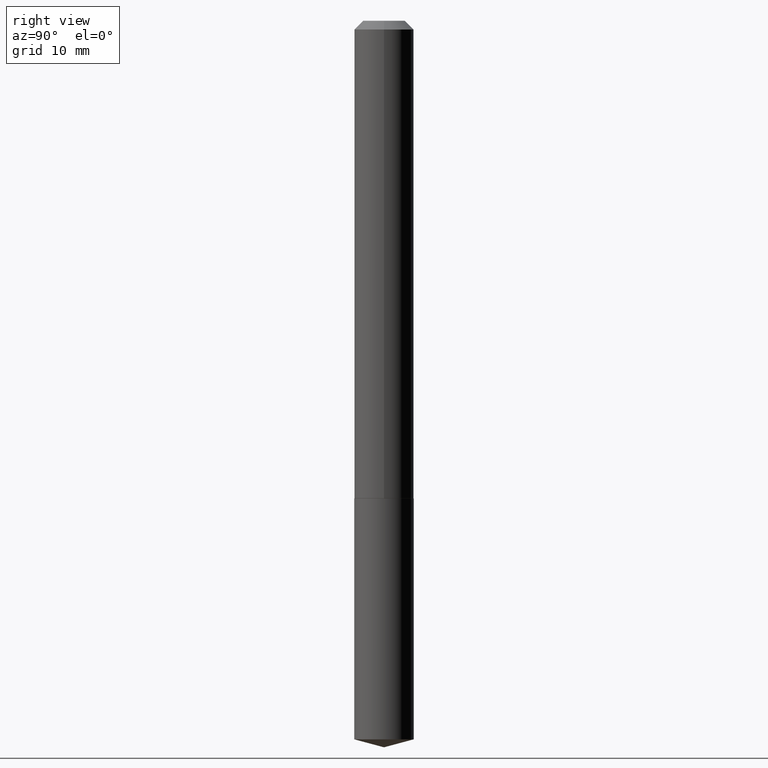
[diagram: clean part render]
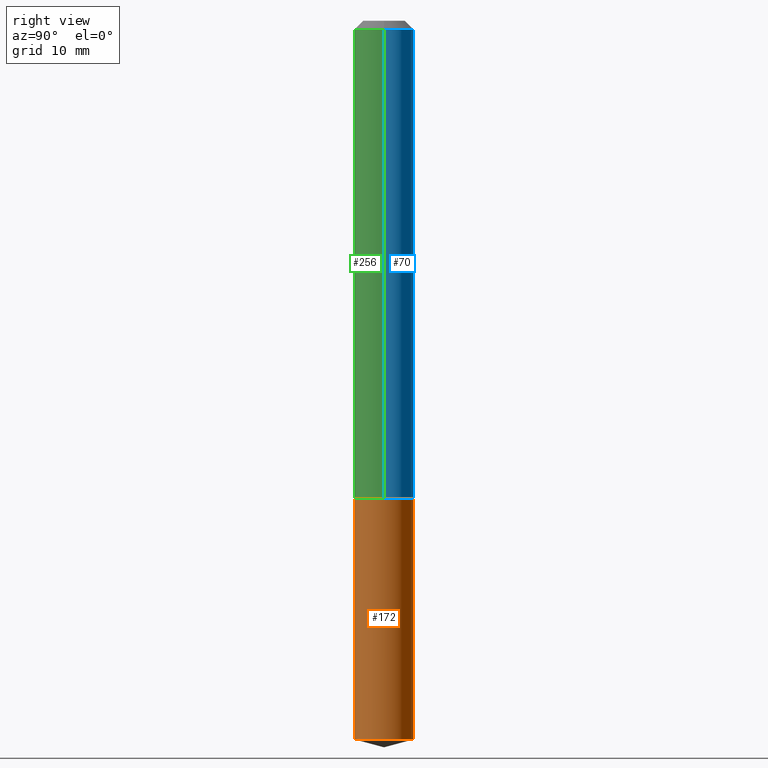
[diagram: same view with three faces highlighted in distinct colors, each labeled with its STEP entity id]
A machine part, right view with three faces highlighted in distinct colors.
Their STEP definitions:

[orange] entity #172 — the highlighted cylindrical surface (edge-blend (fillet) strip) has radius 2.7 mm, axis along (-0, 0, 1).
#5 = VERTEX_POINT ( 'NONE', #233 ) ;
#42 = CIRCLE ( 'NONE', #95, 0.1063000000000000056 ) ;
#43 = DIRECTION ( 'NONE',  ( -2.445559257304033306E-29, 3.491351807692727291E-15, 1.000000000000000000 ) ) ;
#52 = CARTESIAN_POINT ( 'NONE',  ( 7.553069281130489560E-16, 0.1062999999999909850, -2.569917000844572197 ) ) ;
#63 = CYLINDRICAL_SURFACE ( 'NONE', #389, 0.1063000000000000056 ) ;
#67 = VERTEX_POINT ( 'NONE', #338 ) ;
#78 = DIRECTION ( 'NONE',  ( -2.445559257304033306E-29, 3.491351807692727291E-15, 1.000000000000000000 ) ) ;
#93 = CARTESIAN_POINT ( 'NONE',  ( -7.422889326379869312E-16, -0.1063000000000089568, -2.569917000844570865 ) ) ;
#94 = VERTEX_POINT ( 'NONE', #93 ) ;
#95 = AXIS2_PLACEMENT_3D ( 'NONE', #340, #78, #189 ) ;
#96 = ORIENTED_EDGE ( 'NONE', *, *, #281, .T. ) ;
#100 = ORIENTED_EDGE ( 'NONE', *, *, #345, .T. ) ;
#115 = ORIENTED_EDGE ( 'NONE', *, *, #137, .F. ) ;
#123 = FACE_OUTER_BOUND ( 'NONE', #368, .T. ) ;
#137 = EDGE_CURVE ( 'NONE', #94, #5, #326, .T. ) ;
#139 = CARTESIAN_POINT ( 'NONE',  ( 6.284729767136713731E-29, -8.972705683442572229E-15, -2.569917000844571753 ) ) ;
#152 = DIRECTION ( 'NONE',  ( -2.445559257304033306E-29, 3.491351807692727291E-15, 1.000000000000000000 ) ) ;
#154 = DIRECTION ( 'NONE',  ( -6.982962677686265922E-15, -1.000000000000000000, 2.569941668545873170E-15 ) ) ;
#165 = CIRCLE ( 'NONE', #211, 0.1063000000000000056 ) ;
#172 = ADVANCED_FACE ( 'NONE', ( #123 ), #63, .T. ) ;
#189 = DIRECTION ( 'NONE',  ( -6.982962677686265922E-15, -1.000000000000000000, 2.569941668545873170E-15 ) ) ;
#191 = CARTESIAN_POINT ( 'NONE',  ( 7.553069281130281498E-16, 0.1062999999999940520, -1.708600000000000119 ) ) ;
#211 = AXIS2_PLACEMENT_3D ( 'NONE', #139, #251, #371 ) ;
#233 = CARTESIAN_POINT ( 'NONE',  ( -7.422889326380084277E-16, -0.1063000000000059592, -1.708599999999999675 ) ) ;
#248 = ORIENTED_EDGE ( 'NONE', *, *, #298, .F. ) ;
#251 = DIRECTION ( 'NONE',  ( -2.445559257304033306E-29, 3.491351807692727291E-15, 1.000000000000000000 ) ) ;
#281 = EDGE_CURVE ( 'NONE', #94, #303, #165, .T. ) ;
#298 = EDGE_CURVE ( 'NONE', #5, #67, #42, .T. ) ;
#303 = VERTEX_POINT ( 'NONE', #52 ) ;
#305 = VECTOR ( 'NONE', #43, 39.37007874015748143 ) ;
#307 = DIRECTION ( 'NONE',  ( -2.445559257304033306E-29, 3.491351807692727291E-15, 1.000000000000000000 ) ) ;
#318 = CARTESIAN_POINT ( 'NONE',  ( 4.178328002247923804E-29, -5.965545015547398653E-15, -1.708599999999999897 ) ) ;
#326 = LINE ( 'NONE', #329, #305 ) ;
#329 = CARTESIAN_POINT ( 'NONE',  ( -7.422889326380084277E-16, -0.1063000000000059592, -1.708599999999999675 ) ) ;
#338 = CARTESIAN_POINT ( 'NONE',  ( 7.553069281130493504E-16, 0.1062999999999940243, -1.708600000000000119 ) ) ;
#339 = VECTOR ( 'NONE', #307, 39.37007874015748143 ) ;
#340 = CARTESIAN_POINT ( 'NONE',  ( 4.178328002247923804E-29, -5.965545015547398653E-15, -1.708599999999999897 ) ) ;
#341 = LINE ( 'NONE', #191, #339 ) ;
#345 = EDGE_CURVE ( 'NONE', #303, #67, #341, .T. ) ;
#368 = EDGE_LOOP ( 'NONE', ( #96, #100, #248, #115 ) ) ;
#371 = DIRECTION ( 'NONE',  ( -6.982962677686265922E-15, -1.000000000000000000, 5.139883337091746339E-15 ) ) ;
#389 = AXIS2_PLACEMENT_3D ( 'NONE', #318, #152, #154 ) ;

[blue] entity #70 — the highlighted cylindrical surface (edge-blend (fillet) strip) has radius 2.7 mm, axis along (-0, 0, 1).
#9 = DIRECTION ( 'NONE',  ( -2.445468806185136597E-29, 3.491481338843145583E-15, 1.000000000000000000 ) ) ;
#23 = EDGE_CURVE ( 'NONE', #119, #239, #315, .T. ) ;
#25 = CARTESIAN_POINT ( 'NONE',  ( 0.1063000000000000056, -8.513977244768991407E-16, -0.03125000000000019429 ) ) ;
#37 = CARTESIAN_POINT ( 'NONE',  ( -0.1063000000000001166, 7.553069281129873262E-16, -5.228828000940970663E-30 ) ) ;
#49 = VERTEX_POINT ( 'NONE', #349 ) ;
#54 = VECTOR ( 'NONE', #175, 39.37007874015748143 ) ;
#70 = ADVANCED_FACE ( 'NONE', ( #85 ), #231, .T. ) ;
#72 = AXIS2_PLACEMENT_3D ( 'NONE', #125, #99, #257 ) ;
#80 = EDGE_CURVE ( 'NONE', #186, #49, #292, .T. ) ;
#82 = AXIS2_PLACEMENT_3D ( 'NONE', #291, #158, #203 ) ;
#85 = FACE_OUTER_BOUND ( 'NONE', #279, .T. ) ;
#99 = DIRECTION ( 'NONE',  ( -2.445468806185136597E-29, 3.491481338843145583E-15, 1.000000000000000000 ) ) ;
#110 = AXIS2_PLACEMENT_3D ( 'NONE', #347, #9, #296 ) ;
#118 = CARTESIAN_POINT ( 'NONE',  ( 0.1063000000000002415, -6.706088207516028077E-15, -1.708099999999999952 ) ) ;
#119 = VERTEX_POINT ( 'NONE', #118 ) ;
#125 = CARTESIAN_POINT ( 'NONE',  ( 4.177105267844832123E-29, -5.963799274877977150E-15, -1.708099999999999952 ) ) ;
#133 = ORIENTED_EDGE ( 'NONE', *, *, #23, .F. ) ;
#158 = DIRECTION ( 'NONE',  ( -2.445468806185136597E-29, 3.491481338843145583E-15, 1.000000000000000000 ) ) ;
#163 = EDGE_CURVE ( 'NONE', #239, #49, #294, .T. ) ;
#164 = CARTESIAN_POINT ( 'NONE',  ( 0.1063000000000001166, -7.422889326380509276E-16, 5.183375912671085656E-30 ) ) ;
#175 = DIRECTION ( 'NONE',  ( -2.445468806185136877E-29, 3.491481338843145188E-15, 1.000000000000000000 ) ) ;
#186 = VERTEX_POINT ( 'NONE', #354 ) ;
#193 = CIRCLE ( 'NONE', #72, 0.1063000000000002415 ) ;
#203 = DIRECTION ( 'NONE',  ( 1.000000000000000000, -6.982962677686267499E-15, 0.000000000000000000 ) ) ;
#208 = EDGE_CURVE ( 'NONE', #119, #186, #193, .T. ) ;
#231 = CYLINDRICAL_SURFACE ( 'NONE', #110, 0.1063000000000001166 ) ;
#239 = VERTEX_POINT ( 'NONE', #25 ) ;
#257 = DIRECTION ( 'NONE',  ( 1.000000000000000000, -6.982962677686262766E-15, 0.000000000000000000 ) ) ;
#279 = EDGE_LOOP ( 'NONE', ( #361, #344, #330, #133 ) ) ;
#291 = CARTESIAN_POINT ( 'NONE',  ( 7.642090019328599159E-31, -1.091087918388489774E-16, -0.03125000000000019429 ) ) ;
#292 = LINE ( 'NONE', #37, #346 ) ;
#294 = CIRCLE ( 'NONE', #82, 0.1063000000000000056 ) ;
#296 = DIRECTION ( 'NONE',  ( 1.000000000000000000, -6.982962677686266711E-15, 4.876176775795935793E-29 ) ) ;
#315 = LINE ( 'NONE', #164, #54 ) ;
#330 = ORIENTED_EDGE ( 'NONE', *, *, #163, .F. ) ;
#344 = ORIENTED_EDGE ( 'NONE', *, *, #80, .T. ) ;
#346 = VECTOR ( 'NONE', #386, 39.37007874015748143 ) ;
#347 = CARTESIAN_POINT ( 'NONE',  ( 0.000000000000000000, 0.000000000000000000, 0.000000000000000000 ) ) ;
#349 = CARTESIAN_POINT ( 'NONE',  ( -0.1063000000000000056, -2.281147105245424221E-15, -0.03125000000000019429 ) ) ;
#354 = CARTESIAN_POINT ( 'NONE',  ( -0.1063000000000002415, -5.208492346764989429E-15, -1.708099999999999952 ) ) ;
#361 = ORIENTED_EDGE ( 'NONE', *, *, #208, .T. ) ;
#386 = DIRECTION ( 'NONE',  ( -2.445468806185136877E-29, 3.491481338843145188E-15, 1.000000000000000000 ) ) ;

[green] entity #256 — the highlighted cylindrical surface (edge-blend (fillet) strip) has radius 2.7 mm, axis along (-0, 0, 1).
#22 = CIRCLE ( 'NONE', #358, 0.1063000000000002415 ) ;
#23 = EDGE_CURVE ( 'NONE', #119, #239, #315, .T. ) ;
#25 = CARTESIAN_POINT ( 'NONE',  ( 0.1063000000000000056, -8.513977244768991407E-16, -0.03125000000000019429 ) ) ;
#27 = CYLINDRICAL_SURFACE ( 'NONE', #351, 0.1063000000000001166 ) ;
#35 = CIRCLE ( 'NONE', #322, 0.1063000000000000056 ) ;
#37 = CARTESIAN_POINT ( 'NONE',  ( -0.1063000000000001166, 7.553069281129873262E-16, -5.228828000940970663E-30 ) ) ;
#49 = VERTEX_POINT ( 'NONE', #349 ) ;
#54 = VECTOR ( 'NONE', #175, 39.37007874015748143 ) ;
#56 = EDGE_CURVE ( 'NONE', #49, #239, #35, .T. ) ;
#75 = DIRECTION ( 'NONE',  ( 1.000000000000000000, -6.982962677686262766E-15, 0.000000000000000000 ) ) ;
#80 = EDGE_CURVE ( 'NONE', #186, #49, #292, .T. ) ;
#84 = DIRECTION ( 'NONE',  ( -2.445468806185136597E-29, 3.491481338843145583E-15, 1.000000000000000000 ) ) ;
#103 = DIRECTION ( 'NONE',  ( -2.445468806185136597E-29, 3.491481338843145583E-15, 1.000000000000000000 ) ) ;
#111 = EDGE_LOOP ( 'NONE', ( #129, #215, #381, #357 ) ) ;
#118 = CARTESIAN_POINT ( 'NONE',  ( 0.1063000000000002415, -6.706088207516028077E-15, -1.708099999999999952 ) ) ;
#119 = VERTEX_POINT ( 'NONE', #118 ) ;
#129 = ORIENTED_EDGE ( 'NONE', *, *, #80, .F. ) ;
#130 = DIRECTION ( 'NONE',  ( -2.445468806185136597E-29, 3.491481338843145583E-15, 1.000000000000000000 ) ) ;
#140 = EDGE_CURVE ( 'NONE', #186, #119, #22, .T. ) ;
#146 = DIRECTION ( 'NONE',  ( 1.000000000000000000, -6.982962677686266711E-15, 4.876176775795935793E-29 ) ) ;
#164 = CARTESIAN_POINT ( 'NONE',  ( 0.1063000000000001166, -7.422889326380509276E-16, 5.183375912671085656E-30 ) ) ;
#175 = DIRECTION ( 'NONE',  ( -2.445468806185136877E-29, 3.491481338843145188E-15, 1.000000000000000000 ) ) ;
#186 = VERTEX_POINT ( 'NONE', #354 ) ;
#215 = ORIENTED_EDGE ( 'NONE', *, *, #140, .T. ) ;
#220 = CARTESIAN_POINT ( 'NONE',  ( 4.177105267844832123E-29, -5.963799274877977150E-15, -1.708099999999999952 ) ) ;
#222 = DIRECTION ( 'NONE',  ( 1.000000000000000000, -6.982962677686267499E-15, 0.000000000000000000 ) ) ;
#239 = VERTEX_POINT ( 'NONE', #25 ) ;
#256 = ADVANCED_FACE ( 'NONE', ( #313 ), #27, .T. ) ;
#292 = LINE ( 'NONE', #37, #346 ) ;
#313 = FACE_OUTER_BOUND ( 'NONE', #111, .T. ) ;
#315 = LINE ( 'NONE', #164, #54 ) ;
#322 = AXIS2_PLACEMENT_3D ( 'NONE', #370, #103, #222 ) ;
#346 = VECTOR ( 'NONE', #386, 39.37007874015748143 ) ;
#349 = CARTESIAN_POINT ( 'NONE',  ( -0.1063000000000000056, -2.281147105245424221E-15, -0.03125000000000019429 ) ) ;
#351 = AXIS2_PLACEMENT_3D ( 'NONE', #380, #84, #146 ) ;
#354 = CARTESIAN_POINT ( 'NONE',  ( -0.1063000000000002415, -5.208492346764989429E-15, -1.708099999999999952 ) ) ;
#357 = ORIENTED_EDGE ( 'NONE', *, *, #56, .F. ) ;
#358 = AXIS2_PLACEMENT_3D ( 'NONE', #220, #130, #75 ) ;
#370 = CARTESIAN_POINT ( 'NONE',  ( 7.642090019328599159E-31, -1.091087918388489774E-16, -0.03125000000000019429 ) ) ;
#380 = CARTESIAN_POINT ( 'NONE',  ( 0.000000000000000000, 0.000000000000000000, 0.000000000000000000 ) ) ;
#381 = ORIENTED_EDGE ( 'NONE', *, *, #23, .T. ) ;
#386 = DIRECTION ( 'NONE',  ( -2.445468806185136877E-29, 3.491481338843145188E-15, 1.000000000000000000 ) ) ;